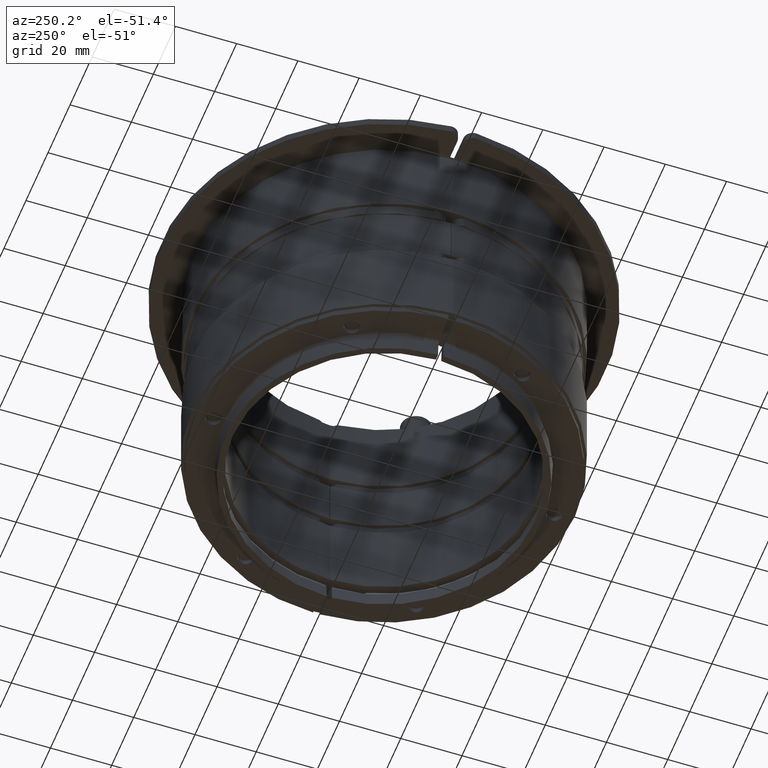
[diagram: clean part render]
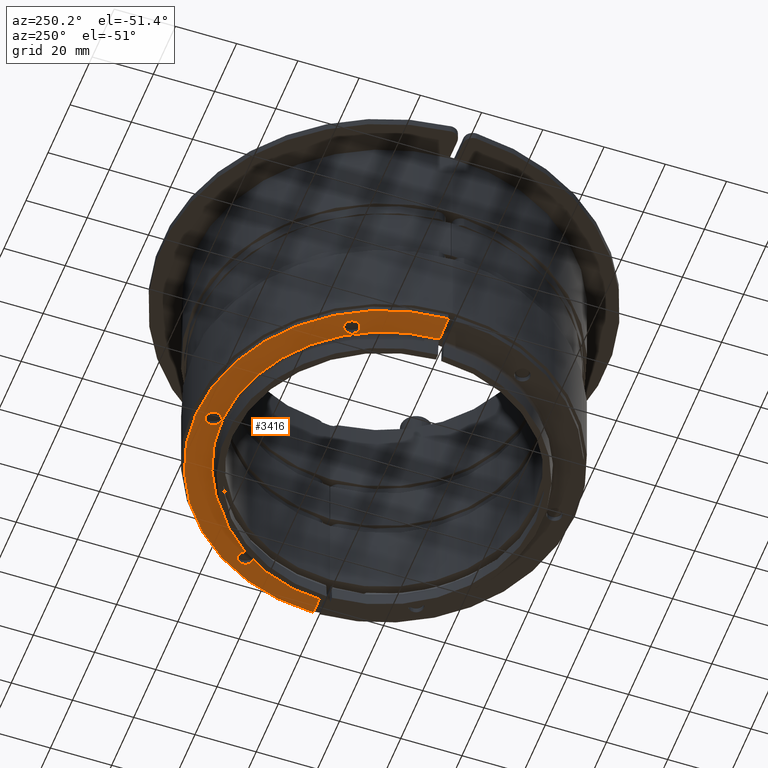
[diagram: same view with one face highlighted and labeled with its STEP entity id]
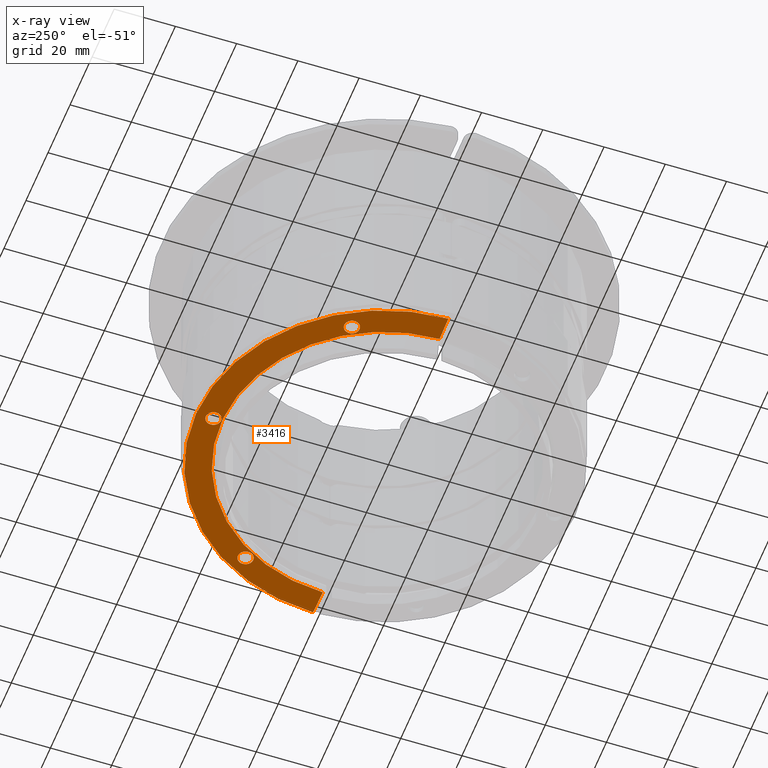
[diagram: x-ray of the same camera — body ghosted, the highlighted face saturated]
A machine part, auxiliary view. The second image highlights one B-rep face of the part: STEP entity #3416.
The next image is the same camera in x-ray: the body ghosted, the highlighted face saturated — about 0% of this face is hidden behind the body in this view.
In plain terms, the highlighted planar face has unit normal (0, -0, -1).
Its self-contained STEP definition (entity closure, byte-faithful):
#3018=CARTESIAN_POINT('',(13.999999999999993,3.000000000000108,52.941263155172919));
#3019=VERTEX_POINT('',#3018);
#3029=CARTESIAN_POINT('',(-38.941263155172919,3.000000000000114,0.0));
#3030=VERTEX_POINT('',#3029);
#3031=CARTESIAN_POINT('',(14.0,3.000000000000108,0.0));
#3032=DIRECTION('',(0.0,1.0,0.0));
#3033=DIRECTION('',(-1.0,0.0,0.0));
#3034=AXIS2_PLACEMENT_3D('',#3031,#3032,#3033);
#3035=CIRCLE('',#3034,52.941263155172919);
#3036=EDGE_CURVE('',#3030,#3019,#3035,.T.);
#3064=CARTESIAN_POINT('',(-32.216317687664358,3.000000000000057,27.003895847720962));
#3065=VERTEX_POINT('',#3064);
#3081=CARTESIAN_POINT('',(-37.216317687664358,3.000000000000056,27.003895847720962));
#3082=VERTEX_POINT('',#3081);
#3089=CARTESIAN_POINT('',(-34.716317687664358,3.000000000000056,27.003895847720962));
#3090=DIRECTION('',(0.0,1.0,0.0));
#3091=DIRECTION('',(1.0,0.0,0.0));
#3092=AXIS2_PLACEMENT_3D('',#3089,#3090,#3091);
#3093=CIRCLE('',#3092,2.500000000000000);
#3094=EDGE_CURVE('',#3065,#3082,#3093,.T.);
#3106=CARTESIAN_POINT('',(64.244218649107637,3.000000000000057,28.687620772490060));
#3107=VERTEX_POINT('',#3106);
#3123=CARTESIAN_POINT('',(59.244218649107637,3.000000000000043,28.687620772490060));
#3124=VERTEX_POINT('',#3123);
#3131=CARTESIAN_POINT('',(61.744218649107637,3.000000000000043,28.687620772490060));
#3132=DIRECTION('',(0.0,1.0,0.0));
#3133=DIRECTION('',(1.0,0.0,0.0));
#3134=AXIS2_PLACEMENT_3D('',#3131,#3132,#3133);
#3135=CIRCLE('',#3134,2.500000000000000);
#3136=EDGE_CURVE('',#3107,#3124,#3135,.T.);
#3148=CARTESIAN_POINT('',(15.527900961443287,3.000000000000057,55.691516620210997));
#3149=VERTEX_POINT('',#3148);
#3165=CARTESIAN_POINT('',(10.527900961443287,3.000000000000050,55.691516620210997));
#3166=VERTEX_POINT('',#3165);
#3173=CARTESIAN_POINT('',(13.027900961443287,3.000000000000050,55.691516620210997));
#3174=DIRECTION('',(0.0,1.0,0.0));
#3175=DIRECTION('',(1.0,0.0,0.0));
#3176=AXIS2_PLACEMENT_3D('',#3173,#3174,#3175);
#3177=CIRCLE('',#3176,2.500000000000000);
#3178=EDGE_CURVE('',#3149,#3166,#3177,.T.);
#3189=CARTESIAN_POINT('',(13.027900961443287,3.000000000000050,55.691516620210997));
#3190=DIRECTION('',(0.0,1.0,0.0));
#3191=DIRECTION('',(1.0,0.0,0.0));
#3192=AXIS2_PLACEMENT_3D('',#3189,#3190,#3191);
#3193=CIRCLE('',#3192,2.500000000000000);
#3194=EDGE_CURVE('',#3166,#3149,#3193,.T.);
#3213=CARTESIAN_POINT('',(61.744218649107637,3.000000000000043,28.687620772490060));
#3214=DIRECTION('',(0.0,1.0,0.0));
#3215=DIRECTION('',(1.0,0.0,0.0));
#3216=AXIS2_PLACEMENT_3D('',#3213,#3214,#3215);
#3217=CIRCLE('',#3216,2.500000000000000);
#3218=EDGE_CURVE('',#3124,#3107,#3217,.T.);
#3237=CARTESIAN_POINT('',(-34.716317687664358,3.000000000000056,27.003895847720962));
#3238=DIRECTION('',(0.0,1.0,0.0));
#3239=DIRECTION('',(1.0,0.0,0.0));
#3240=AXIS2_PLACEMENT_3D('',#3237,#3238,#3239);
#3241=CIRCLE('',#3240,2.500000000000000);
#3242=EDGE_CURVE('',#3082,#3065,#3241,.T.);
#3353=CARTESIAN_POINT('',(66.909012768083841,3.000000000000100,1.847623438910202));
#3354=VERTEX_POINT('',#3353);
#3362=CARTESIAN_POINT('',(14.0,3.000000000000108,0.0));
#3363=DIRECTION('',(0.0,1.0,0.0));
#3364=DIRECTION('',(-1.0,0.0,0.0));
#3365=AXIS2_PLACEMENT_3D('',#3362,#3363,#3364);
#3366=CIRCLE('',#3365,52.941263155172919);
#3367=EDGE_CURVE('',#3019,#3354,#3366,.T.);
#3372=CARTESIAN_POINT('',(-44.133142914060556,3.000000000000057,0.0));
#3373=DIRECTION('',(0.0,-1.0,0.0));
#3374=DIRECTION('',(0.0,0.0,-1.0));
#3375=AXIS2_PLACEMENT_3D('',#3372,#3373,#3374);
#3376=PLANE('',#3375);
#3377=CARTESIAN_POINT('',(75.362596778972460,2.999999999999985,2.142829097533570));
#3378=VERTEX_POINT('',#3377);
#3379=CARTESIAN_POINT('',(66.909012768083841,3.000000000000100,1.847623438910202));
#3380=DIRECTION('',(0.999390827019096,-1.365017E-014,0.034899496702501));
#3381=VECTOR('',#3380,8.458736844827067);
#3382=LINE('',#3379,#3381);
#3383=EDGE_CURVE('',#3354,#3378,#3382,.T.);
#3384=ORIENTED_EDGE('',*,*,#3383,.T.);
#3385=CARTESIAN_POINT('',(-47.399999999999977,3.0,0.0));
#3386=VERTEX_POINT('',#3385);
#3387=CARTESIAN_POINT('',(14.0,2.999999999999993,0.0));
#3388=DIRECTION('',(0.0,1.0,0.0));
#3389=DIRECTION('',(-1.0,0.0,0.0));
#3390=AXIS2_PLACEMENT_3D('',#3387,#3388,#3389);
#3391=CIRCLE('',#3390,61.399999999999977);
#3392=EDGE_CURVE('',#3386,#3378,#3391,.T.);
#3393=ORIENTED_EDGE('',*,*,#3392,.F.);
#3394=CARTESIAN_POINT('',(-47.399999999999977,3.0,0.0));
#3395=DIRECTION('',(1.0,0.0,0.0));
#3396=VECTOR('',#3395,8.458736844827058);
#3397=LINE('',#3394,#3396);
#3398=EDGE_CURVE('',#3386,#3030,#3397,.T.);
#3399=ORIENTED_EDGE('',*,*,#3398,.T.);
#3400=ORIENTED_EDGE('',*,*,#3036,.T.);
#3401=ORIENTED_EDGE('',*,*,#3367,.T.);
#3402=EDGE_LOOP('',(#3384,#3393,#3399,#3400,#3401));
#3403=FACE_OUTER_BOUND('',#3402,.T.);
#3404=ORIENTED_EDGE('',*,*,#3178,.T.);
#3405=ORIENTED_EDGE('',*,*,#3194,.T.);
#3406=EDGE_LOOP('',(#3404,#3405));
#3407=FACE_BOUND('',#3406,.T.);
#3408=ORIENTED_EDGE('',*,*,#3136,.T.);
#3409=ORIENTED_EDGE('',*,*,#3218,.T.);
#3410=EDGE_LOOP('',(#3408,#3409));
#3411=FACE_BOUND('',#3410,.T.);
#3412=ORIENTED_EDGE('',*,*,#3094,.T.);
#3413=ORIENTED_EDGE('',*,*,#3242,.T.);
#3414=EDGE_LOOP('',(#3412,#3413));
#3415=FACE_BOUND('',#3414,.T.);
#3416=ADVANCED_FACE('',(#3403,#3407,#3411,#3415),#3376,.T.);